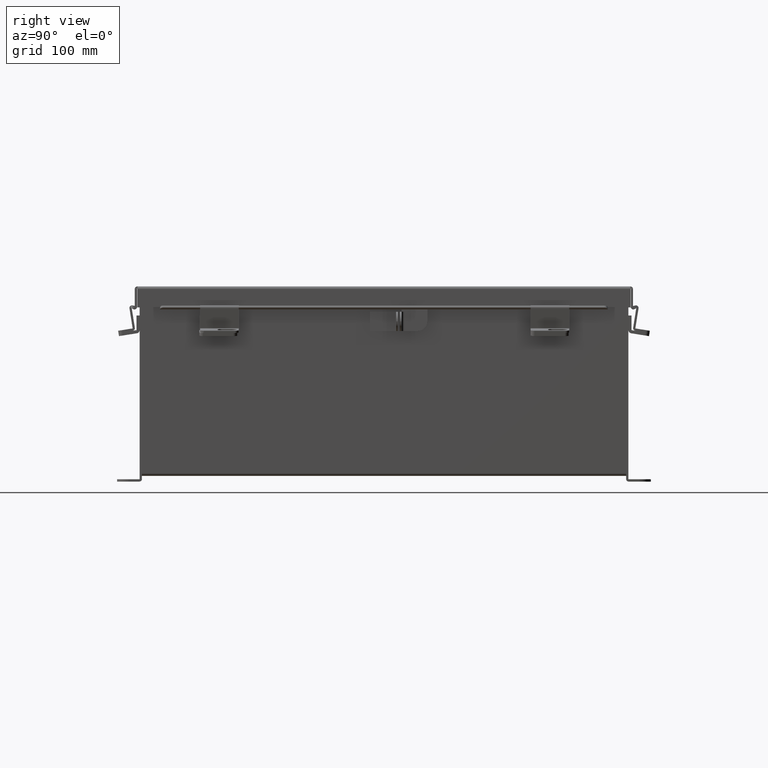
[diagram: clean part render]
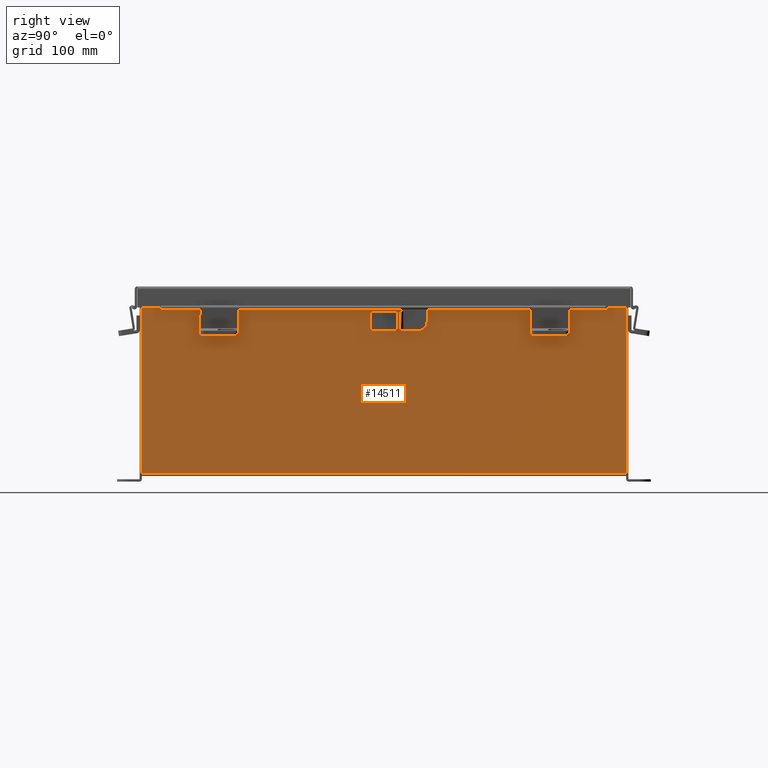
[diagram: same view with one face highlighted and labeled with its STEP entity id]
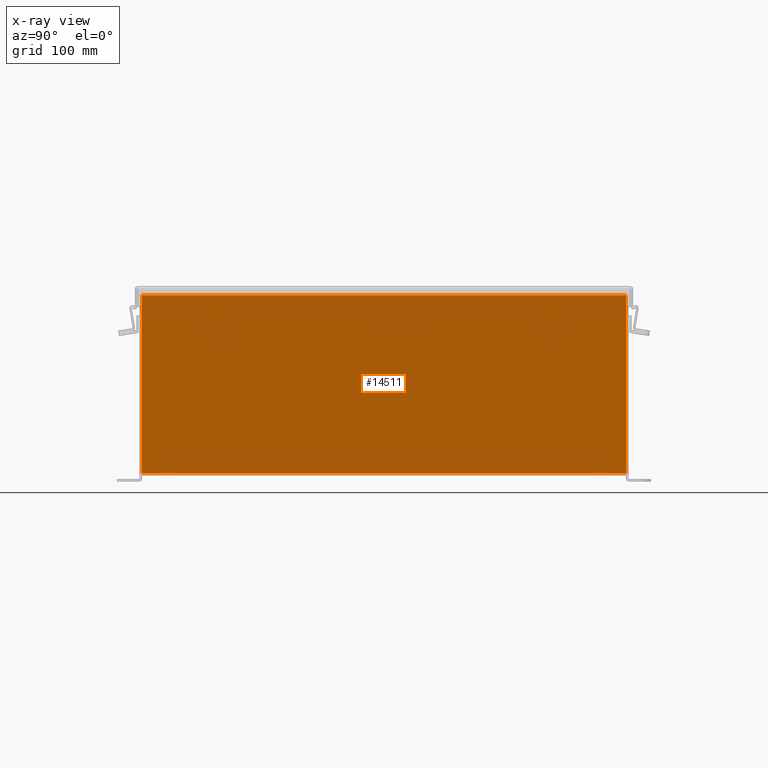
[diagram: x-ray of the same camera — body ghosted, the highlighted face saturated]
A machine part, right view. The second image highlights one B-rep face of the part: STEP entity #14511.
The next image is the same camera in x-ray: the body ghosted, the highlighted face saturated — about 0% of this face is hidden behind the body in this view.
In plain terms, the highlighted planar face has unit normal (-1, 0, 0).
Its self-contained STEP definition (entity closure, byte-faithful):
#109 = VECTOR ( 'NONE', #12715, 39.37007874015748100 ) ;
#440 = CARTESIAN_POINT ( 'NONE',  ( 7.000000000000000000, 0.0000000000000000000, -2.509885344179041700E-014 ) ) ;
#679 = EDGE_CURVE ( 'NONE', #8160, #12408, #1292, .T. ) ;
#1292 = LINE ( 'NONE', #16072, #109 ) ;
#1972 = VECTOR ( 'NONE', #10950, 39.37007874015748100 ) ;
#1988 = DIRECTION ( 'NONE',  ( 3.548703509357741800E-015, 0.0000000000000000000, 1.000000000000000000 ) ) ;
#2422 = ORIENTED_EDGE ( 'NONE', *, *, #679, .F. ) ;
#2449 = VECTOR ( 'NONE', #6978, 39.37007874015748100 ) ;
#3246 = CARTESIAN_POINT ( 'NONE',  ( 7.000000000000020400, 7.925299999999996500, 5.837600000000000100 ) ) ;
#6701 = VECTOR ( 'NONE', #10445, 39.37007874015748100 ) ;
#6978 = DIRECTION ( 'NONE',  ( -3.548703509357741800E-015, 0.0000000000000000000, -1.000000000000000000 ) ) ;
#7125 = ORIENTED_EDGE ( 'NONE', *, *, #17601, .T. ) ;
#7436 = CARTESIAN_POINT ( 'NONE',  ( 7.000000000000000000, 7.925300000000000900, 0.01299999999999984300 ) ) ;
#8160 = VERTEX_POINT ( 'NONE', #7436 ) ;
#8906 = ORIENTED_EDGE ( 'NONE', *, *, #15980, .T. ) ;
#9646 = PLANE ( 'NONE',  #15434 ) ;
#10148 = LINE ( 'NONE', #15688, #1972 ) ;
#10445 = DIRECTION ( 'NONE',  ( 3.548703509357741800E-015, -1.867738689135653700E-016, 1.000000000000000000 ) ) ;
#10764 = CARTESIAN_POINT ( 'NONE',  ( 7.000000000000000000, -7.925299999999997300, 0.01299999999999984300 ) ) ;
#10950 = DIRECTION ( 'NONE',  ( -0.0000000000000000000, -1.000000000000000000, -0.0000000000000000000 ) ) ;
#11229 = DIRECTION ( 'NONE',  ( -1.000000000000000000, 0.0000000000000000000, 3.548703509357741800E-015 ) ) ;
#11489 = ORIENTED_EDGE ( 'NONE', *, *, #14423, .T. ) ;
#12149 = CARTESIAN_POINT ( 'NONE',  ( 7.000000000000020400, -7.925299999999995600, 5.837600000000000100 ) ) ;
#12408 = VERTEX_POINT ( 'NONE', #10764 ) ;
#12715 = DIRECTION ( 'NONE',  ( -0.0000000000000000000, -1.000000000000000000, -0.0000000000000000000 ) ) ;
#13273 = CARTESIAN_POINT ( 'NONE',  ( 7.000000000000000000, -7.925299999999997300, -2.509885344179041700E-014 ) ) ;
#13847 = LINE ( 'NONE', #13273, #2449 ) ;
#14423 = EDGE_CURVE ( 'NONE', #17750, #18310, #10148, .T. ) ;
#14511 = ADVANCED_FACE ( 'NONE', ( #16981 ), #9646, .F. ) ;
#15434 = AXIS2_PLACEMENT_3D ( 'NONE', #440, #11229, #1988 ) ;
#15688 = CARTESIAN_POINT ( 'NONE',  ( 7.000000000000020400, 7.925299999999997300, 5.837600000000000100 ) ) ;
#15980 = EDGE_CURVE ( 'NONE', #18310, #12408, #13847, .T. ) ;
#16072 = CARTESIAN_POINT ( 'NONE',  ( 7.000000000000000000, -7.925299999999997300, 0.01299999999999984300 ) ) ;
#16981 = FACE_OUTER_BOUND ( 'NONE', #19525, .T. ) ;
#17601 = EDGE_CURVE ( 'NONE', #8160, #17750, #19163, .T. ) ;
#17750 = VERTEX_POINT ( 'NONE', #3246 ) ;
#18310 = VERTEX_POINT ( 'NONE', #12149 ) ;
#19163 = LINE ( 'NONE', #19685, #6701 ) ;
#19525 = EDGE_LOOP ( 'NONE', ( #11489, #8906, #2422, #7125 ) ) ;
#19685 = CARTESIAN_POINT ( 'NONE',  ( 7.000000000000000000, 7.925300000000000900, -2.362194812021567500E-014 ) ) ;